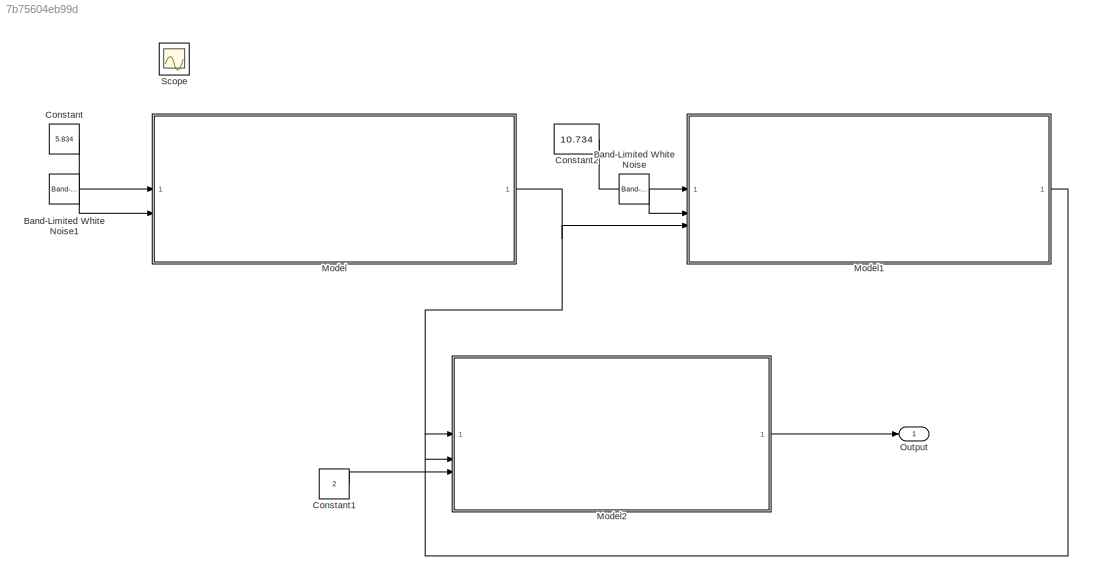
MODEL slx_7b75604eb99d
KIND model
CONFIG AbsTol = auto
CONFIG EnableMultiTasking = off
CONFIG FixedStep = auto
CONFIG MaxStep = auto
CONFIG MinStep = auto
CONFIG RelTol = 1e-3
CONFIG SampleTimeConstraint = Unconstrained
CONFIG SolverName = VariableStepAuto
CONFIG StartTime = 0.0
CONFIG StopTime = 10.0
BLOCK [Reference] Band-Limited White Noise  REF=simulink/Sources/Band-Limited
White Noise
  SourceBlock = simulink/Sources/Band-Limited\nWhite Noise
  SourceType = Band-Limited White Noise.
BLOCK [Reference] Band-Limited White Noise1  REF=simulink/Sources/Band-Limited
White Noise
  SourceBlock = simulink/Sources/Band-Limited\nWhite Noise
  SourceType = Band-Limited White Noise.
BLOCK [Constant] Constant
  Value = 5.834
BLOCK [Constant] Constant1
  Value = 2
BLOCK [Constant] Constant2
  Value = 10.734
BLOCK [ModelReference] Model
  ModelNameDialog = UpdateTimeModel.slx
  ModelReferenceVersion = 1.1
BLOCK [ModelReference] Model1
  ModelNameDialog = UpdateTimeModel.slx
  ModelReferenceVersion = 1.1
BLOCK [ModelReference] Model2
  ModelNameDialog = LoopCounter.slx
  ModelReferenceVersion = 1.1
BLOCK [Outport] Output
BLOCK [Scope] Scope
  Floating = off
  IOType = viewer
  NumInputPorts = 1
  ScopeSpecificationString = Simulink.scopes.TimeScopeBlockCfg('CurrentConfiguration', extmgr.ConfigurationSet(extmgr.Configuration('Core','General UI',true),extmgr.Configuration('Core','Source UI',true),extmgr.Configuration('Sources','WiredSimulink',true),extmgr.Configuration('Visuals','Time Domain',true,'SerializedDisplays',{struct('MinYLimReal','11.468','MaxYLimReal','31.468','YLabelReal','','MinYLimMag','11.468','MaxYLimM...<+1447ch>
LINE Band-Limited White Noise1:1 -> Model:2
LINE Band-Limited White Noise:1 -> Model1:2
LINE Constant1:1 -> Model2:3
LINE Constant2:1 -> Model1:1
LINE Constant:1 -> Model:1
LINE Model1:1 -> Model2:2
LINE Model2:1 -> Output:1
NET Model:1 -> Model1:3, Model2:1
note: NET lines group one-source signal fan-out (src -> all destinations, sorted); 1:1 wires keep LINE
